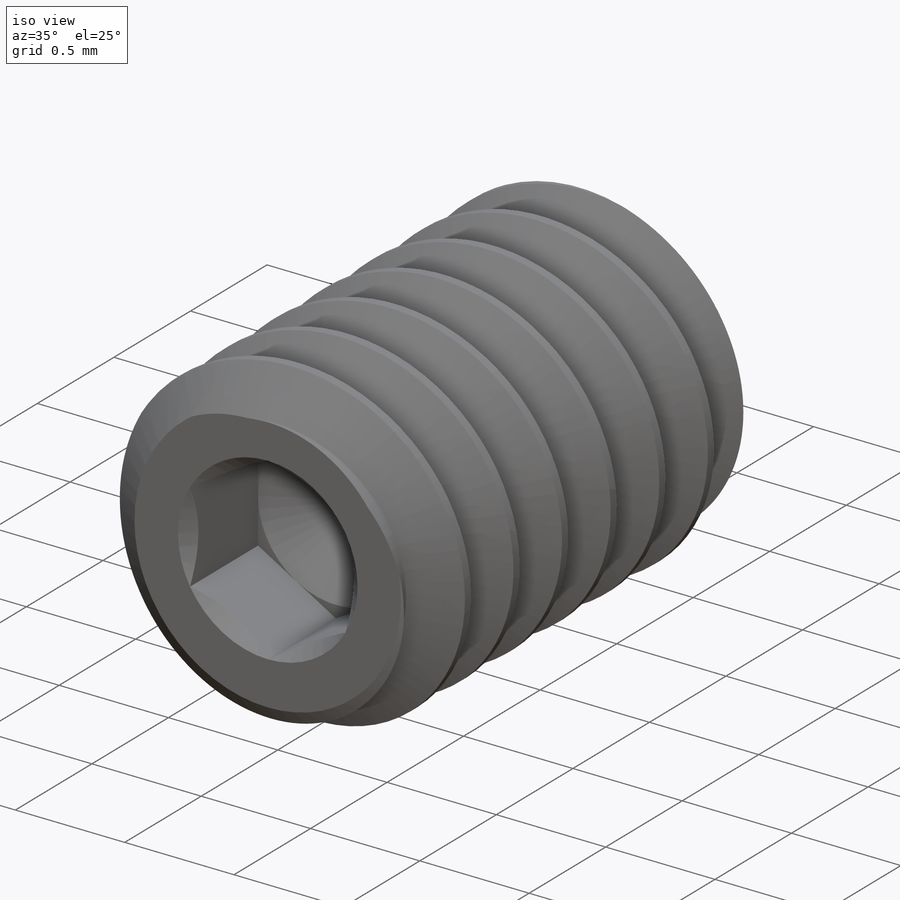
[diagram: iso view]
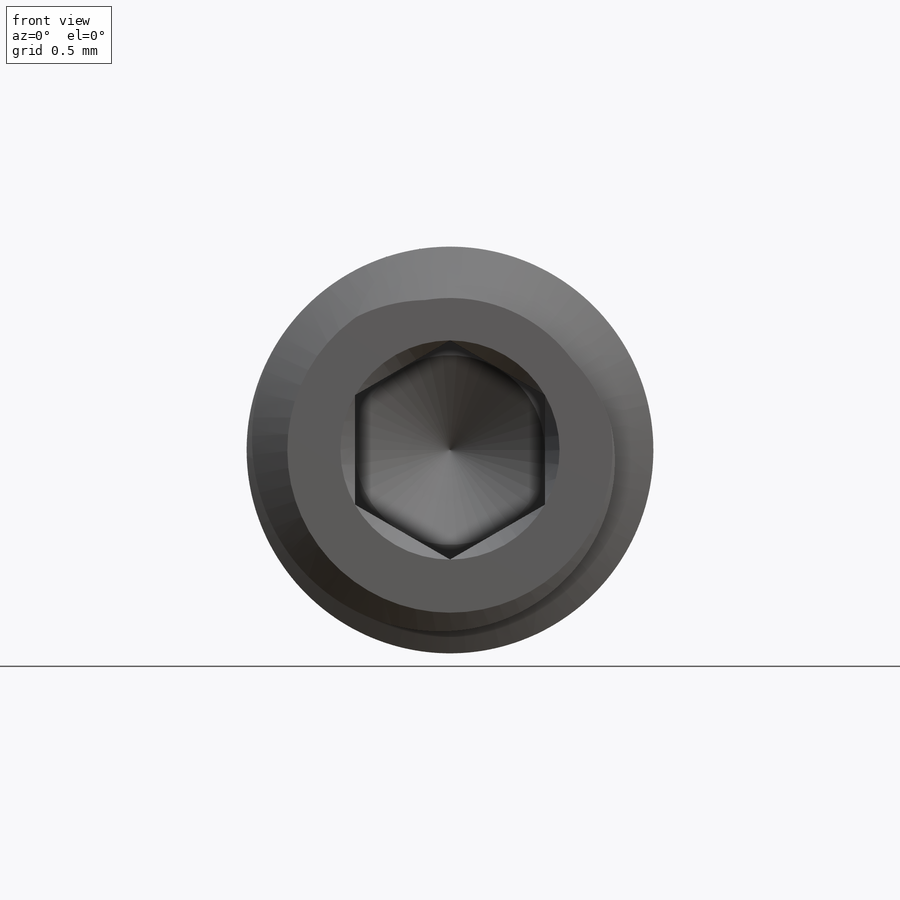
[diagram: front view]
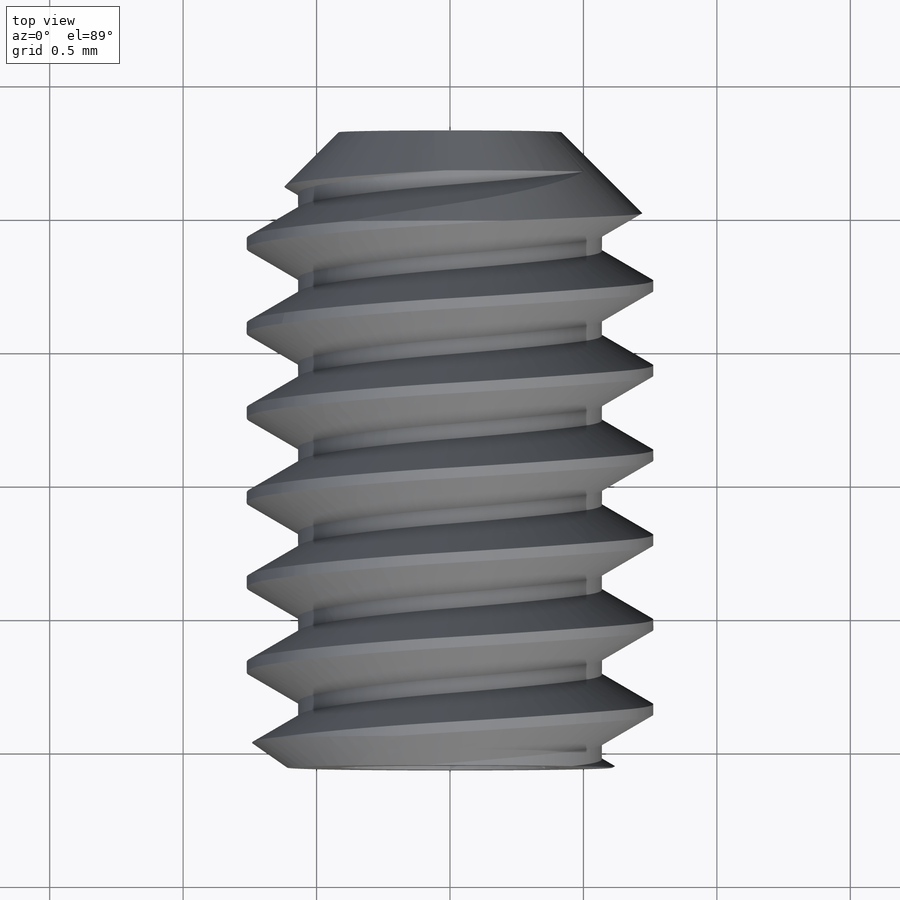
[diagram: top view]
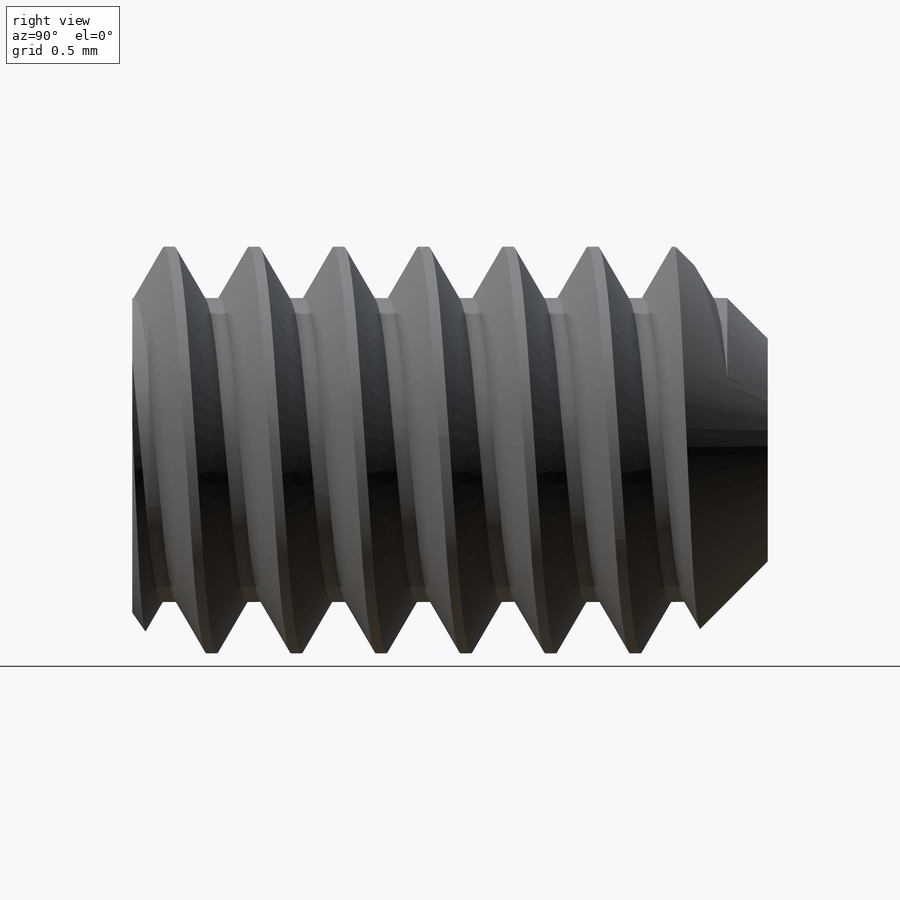
[diagram: right view]
SOLIDWORKS PART (.sldprt)
format: sldprt  version: not decoded by parser v0  size: 680,448 bytes
history: native  units: mm
features: sketch x8, cut_extrude x3, material x1, revolve x1, plane x1, helix x1, sweep x1 (+12 scaffold rows collapsed)
feature tree (28):
  scaffold x12  (default folders/planes/origin — collapsed)
  material  "Material <not specified>"
  sketch  "Sketch22"  dims[c1.Dia=1.524mm c1.Length=~2.38125mm c1.D3=~0.472649mm c2.D3=35.0deg c2.Cup Point Dia=3.3528mm c2.D5=~1.43605mm c3.D5=118.0deg c3.D6=1.4986mm c4.D6=45.0deg c4.D7=1.2192mm]
  revolve  "Revolve1"  Angle=360deg
  plane  "Plane1"
  sketch  "Sketch27"
  helix  "Helix/Spiral1"  Pitch=2.95275mm
  sketch  "Sketch28"  dims[c1.D1=~0.055562mm c1.D2=0.635mm c1.D3=~0.654188mm c2.D3=60.0deg c2.D2=~0.15875mm c2.D4=~0.277812mm c3.D2=~0.277813mm]
  sweep  "Cut-Sweep2"
  sketch  "Sketch23"  dims[Hex=0.7112mm]
  cut_extrude  "Cut-Extrude10"  Depth=0.4445mm hex Depth=0.4445mm
  sketch  "Sketch24"
  cut_extrude  "Cut-Extrude11"  [1 undecoded]
  sketch  "Sketch26"
  cut_extrude  "Cut-Extrude12"  [1 undecoded]
  sketch  "Sketch30"  dims[D1=~0.79375mm]
  sketch  "Sketch31"
decode coverage: 7 of 14 modeling features carry decoded parameters
note: ~ marks probable driven/reference dimensions
note: 2 parameter values undecoded
note: suppression state not decoded; provenance and decode notes live in map.json
